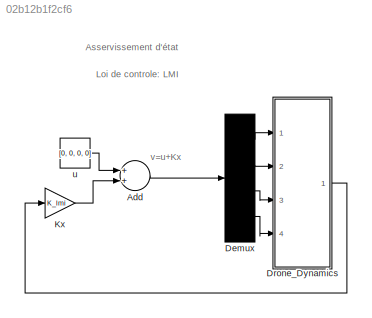
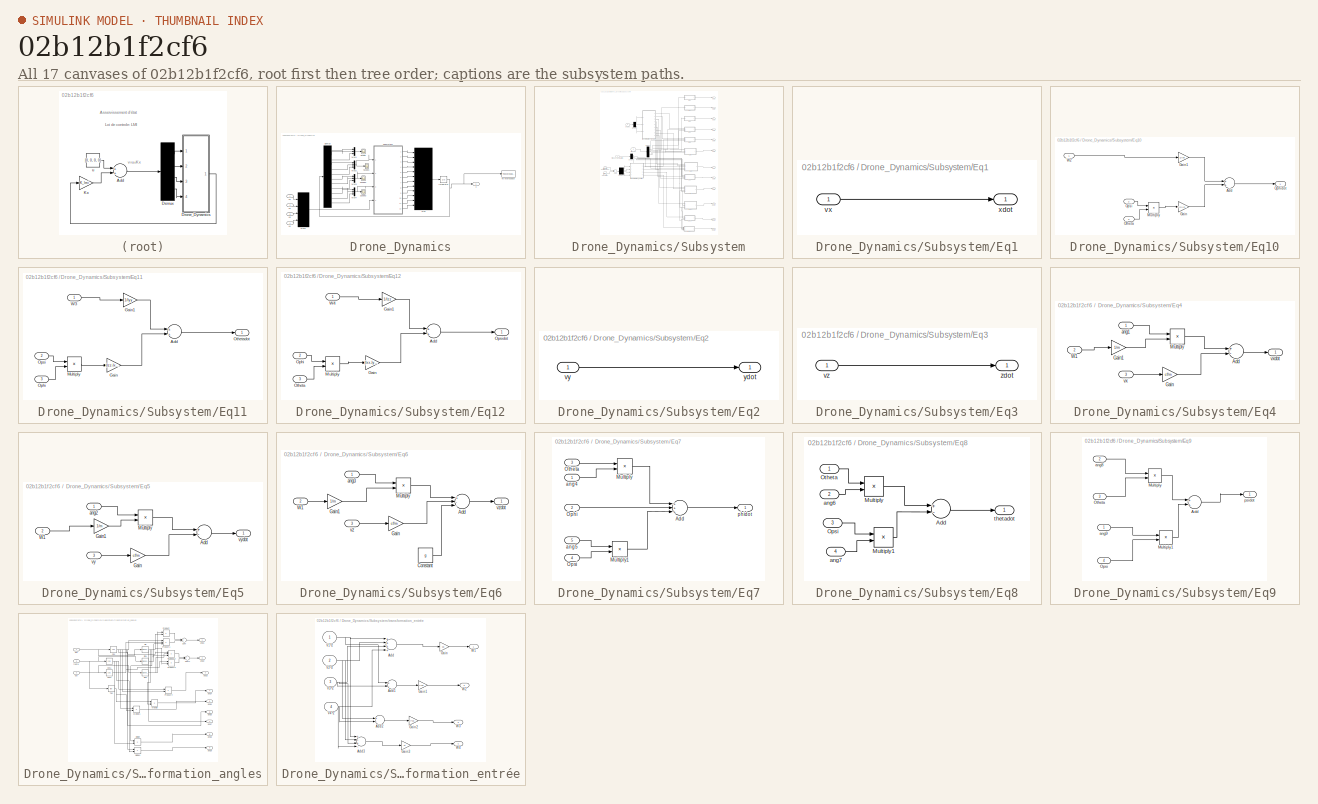
[diagram: thumbnail index - all 17 canvases of the model, root first then tree order]
MODEL slx_02b12b1f2cf6
KIND model
CONFIG AbsTol = auto
CONFIG EnableMultiTasking = off
CONFIG FixedStep = auto
CONFIG MaxStep = auto
CONFIG MinStep = auto
CONFIG RelTol = 1e-3
CONFIG SampleTimeConstraint = Unconstrained
CONFIG Solver = VariableStepAuto
CONFIG SolverName = VariableStepAuto
CONFIG StartTime = 0.0
CONFIG StopTime = 10.0
BLOCK [Sum] Add
  InputSameDT = off
  OutDataTypeStr = Inherit: Inherit via internal rule
  Ports = [2, 1]
  SaturateOnIntegerOverflow = off
BLOCK [Demux] Demux
  DisplayOption = bar
  Ports = [1, 4]
BLOCK [SubSystem] Drone_Dynamics
  Ports = [4, 1]
  RequestExecContextInheritance = off
BLOCK [Demux] Drone_Dynamics/Demux
  DisplayOption = bar
  Outputs = 12
  Ports = [1, 12]
BLOCK [Integrator] Drone_Dynamics/Integrator
  InitialCondition = [0.1,0.1,0.1,0,0,0,0,0,0,0,0,0]
  Ports = [1, 1]
BLOCK [Mux] Drone_Dynamics/Mux
  DisplayOption = bar
  Inputs = 12
  Ports = [12, 1]
BLOCK [Mux] Drone_Dynamics/Mux1
  DisplayOption = bar
  Inputs = 3
  Ports = [3, 1]
BLOCK [Mux] Drone_Dynamics/Mux2
  DisplayOption = bar
  Inputs = 3
  Ports = [3, 1]
BLOCK [Mux] Drone_Dynamics/Mux3
  DisplayOption = bar
  Inputs = 3
  Ports = [3, 1]
BLOCK [Mux] Drone_Dynamics/Mux4
  DisplayOption = bar
  Inputs = 3
  Ports = [3, 1]
BLOCK [Mux] Drone_Dynamics/Mux5
  DisplayOption = bar
  Ports = [4, 1]
BLOCK [Scope] Drone_Dynamics/Scope
  Floating = off
  NumInputPorts = 1
  Ports = [1]
  ScopeSpecificationString = Simulink.scopes.TimeScopeBlockCfg('CurrentConfiguration', extmgr.ConfigurationSet(extmgr.Configuration('Core','General UI',true),extmgr.Configuration('Core','Source UI',true),extmgr.Configuration('Sources','WiredSimulink',true,'DataLoggingVariableName','ScopeData1'),extmgr.Configuration('Visuals','Time Domain',true,'SerializedDisplays',{struct('MinYLimReal','-52.57171','MaxYLimReal','45.2202','YLa...<+1426ch>
BLOCK [Scope] Drone_Dynamics/Scope1
  Floating = off
  NumInputPorts = 1
  Ports = [1]
  ScopeSpecificationString = Simulink.scopes.TimeScopeBlockCfg('CurrentConfiguration', extmgr.ConfigurationSet(extmgr.Configuration('Core','General UI',true),extmgr.Configuration('Core','Source UI',true),extmgr.Configuration('Sources','WiredSimulink',true,'DataLoggingVariableName','ScopeData2'),extmgr.Configuration('Visuals','Time Domain',true,'SerializedDisplays',{struct('MinYLimReal','-56.33955','MaxYLimReal','41.05214','YL...<+1428ch>
BLOCK [Scope] Drone_Dynamics/Scope2
  Floating = off
  NumInputPorts = 1
  Ports = [1]
  ScopeSpecificationString = Simulink.scopes.TimeScopeBlockCfg('CurrentConfiguration', extmgr.ConfigurationSet(extmgr.Configuration('Core','General UI',true),extmgr.Configuration('Core','Source UI',true),extmgr.Configuration('Sources','WiredSimulink',true,'DataLoggingVariableName','ScopeData3'),extmgr.Configuration('Visuals','Time Domain',true,'SerializedDisplays',{struct('MinYLimReal','-1','MaxYLimReal','1','YLabelReal','','...<+1414ch>
BLOCK [Scope] Drone_Dynamics/Scope3
  Floating = off
  NumInputPorts = 1
  Ports = [1]
  ScopeSpecificationString = Simulink.scopes.TimeScopeBlockCfg('CurrentConfiguration', extmgr.ConfigurationSet(extmgr.Configuration('Core','General UI',true),extmgr.Configuration('Core','Source UI',true),extmgr.Configuration('Sources','WiredSimulink',true),extmgr.Configuration('Visuals','Time Domain',true,'SerializedDisplays',{struct('MinYLimReal','-34.64705','MaxYLimReal','33.57081','YLabelReal','','MinYLimMag','0.00000','Ma...<+1393ch>
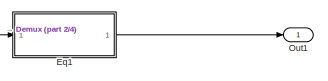
[diagram: Drone_Dynamics/Subsystem - part 1/4, top right region]
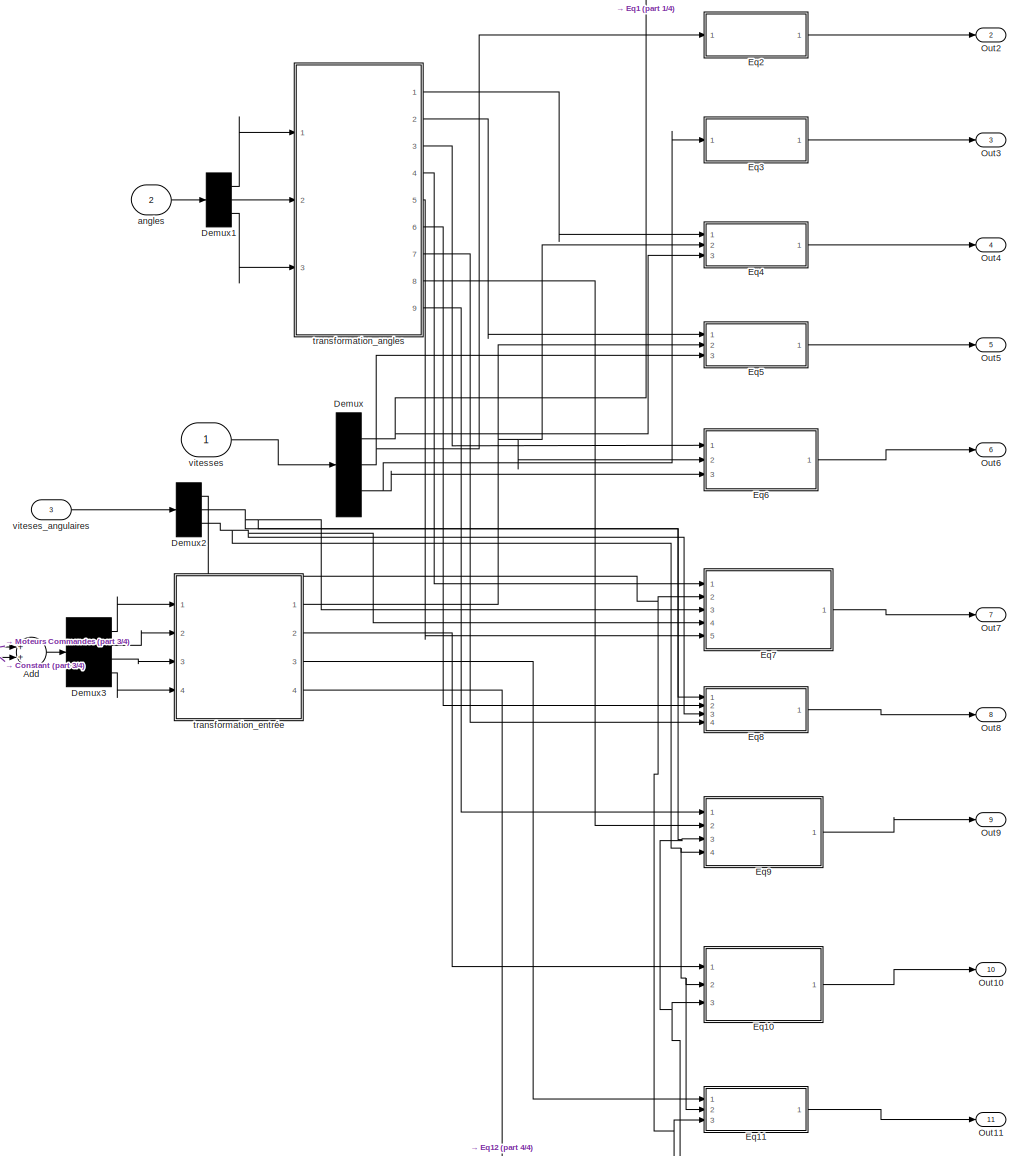
[diagram: Drone_Dynamics/Subsystem - part 2/4, most of the canvas]
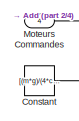
[diagram: Drone_Dynamics/Subsystem - part 3/4, middle left region]
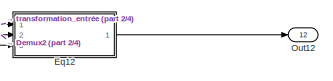
[diagram: Drone_Dynamics/Subsystem - part 4/4, bottom right region]
BLOCK [SubSystem] Drone_Dynamics/Subsystem
  Ports = [4, 12]
  RequestExecContextInheritance = off
BLOCK [Sum] Drone_Dynamics/Subsystem/Add
  InputSameDT = off
  OutDataTypeStr = Inherit: Inherit via internal rule
  Ports = [2, 1]
  SaturateOnIntegerOverflow = off
BLOCK [Constant] Drone_Dynamics/Subsystem/Constant
  Value = [(m*g)/(4*cp),(m*g)/(4*cp),(m*g)/(4*cp),(m*g)/(4*cp)]
BLOCK [Demux] Drone_Dynamics/Subsystem/Demux
  DisplayOption = bar
  Outputs = 3
  Ports = [1, 3]
BLOCK [Demux] Drone_Dynamics/Subsystem/Demux1
  DisplayOption = bar
  Outputs = 3
  Ports = [1, 3]
BLOCK [Demux] Drone_Dynamics/Subsystem/Demux2
  DisplayOption = bar
  Outputs = 3
  Ports = [1, 3]
BLOCK [Demux] Drone_Dynamics/Subsystem/Demux3
  DisplayOption = bar
  Ports = [1, 4]
BLOCK [SubSystem] Drone_Dynamics/Subsystem/Eq1
  Ports = [1, 1]
  RequestExecContextInheritance = off
BLOCK [Inport] Drone_Dynamics/Subsystem/Eq1/vx
  IconDisplay = Port number
BLOCK [Outport] Drone_Dynamics/Subsystem/Eq1/xdot
  IconDisplay = Port number
BLOCK [SubSystem] Drone_Dynamics/Subsystem/Eq10
  Ports = [3, 1]
  RequestExecContextInheritance = off
BLOCK [Sum] Drone_Dynamics/Subsystem/Eq10/Add
  InputSameDT = off
  OutDataTypeStr = Inherit: Inherit via internal rule
  Ports = [2, 1]
  SaturateOnIntegerOverflow = off
BLOCK [Gain] Drone_Dynamics/Subsystem/Eq10/Gain
  Gain = (Iyy-Izz)/Ixx
  OutDataTypeStr = Inherit: Inherit via internal rule
  ParamDataTypeStr = Inherit: Inherit via internal rule
  SaturateOnIntegerOverflow = off
BLOCK [Gain] Drone_Dynamics/Subsystem/Eq10/Gain1
  Gain = 1/Ixx
  OutDataTypeStr = Inherit: Inherit via internal rule
  ParamDataTypeStr = Inherit: Inherit via internal rule
  SaturateOnIntegerOverflow = off
BLOCK [Product] Drone_Dynamics/Subsystem/Eq10/Multiply
  InputSameDT = off
  OutDataTypeStr = Inherit: Inherit via internal rule
  Ports = [2, 1]
  RndMeth = Floor
  SaturateOnIntegerOverflow = off
BLOCK [Outport] Drone_Dynamics/Subsystem/Eq10/Ophidot
  IconDisplay = Port number
BLOCK [Inport] Drone_Dynamics/Subsystem/Eq10/Opsi
  IconDisplay = Port number
  Port = 2
BLOCK [Inport] Drone_Dynamics/Subsystem/Eq10/Otheta
  IconDisplay = Port number
  Port = 3
BLOCK [Inport] Drone_Dynamics/Subsystem/Eq10/W2
  IconDisplay = Port number
BLOCK [SubSystem] Drone_Dynamics/Subsystem/Eq11
  Ports = [3, 1]
  RequestExecContextInheritance = off
BLOCK [Sum] Drone_Dynamics/Subsystem/Eq11/Add
  InputSameDT = off
  OutDataTypeStr = Inherit: Inherit via internal rule
  Ports = [2, 1]
  SaturateOnIntegerOverflow = off
BLOCK [Gain] Drone_Dynamics/Subsystem/Eq11/Gain
  Gain = (Izz-Ixx)/Iyy
  OutDataTypeStr = Inherit: Inherit via internal rule
  ParamDataTypeStr = Inherit: Inherit via internal rule
  SaturateOnIntegerOverflow = off
BLOCK [Gain] Drone_Dynamics/Subsystem/Eq11/Gain1
  Gain = 1/Iyy
  OutDataTypeStr = Inherit: Inherit via internal rule
  ParamDataTypeStr = Inherit: Inherit via internal rule
  SaturateOnIntegerOverflow = off
BLOCK [Product] Drone_Dynamics/Subsystem/Eq11/Multiply
  InputSameDT = off
  OutDataTypeStr = Inherit: Inherit via internal rule
  Ports = [2, 1]
  RndMeth = Floor
  SaturateOnIntegerOverflow = off
BLOCK [Inport] Drone_Dynamics/Subsystem/Eq11/Ophi
  IconDisplay = Port number
  Port = 3
BLOCK [Inport] Drone_Dynamics/Subsystem/Eq11/Opsi
  IconDisplay = Port number
  Port = 2
BLOCK [Outport] Drone_Dynamics/Subsystem/Eq11/Othetadot
  IconDisplay = Port number
BLOCK [Inport] Drone_Dynamics/Subsystem/Eq11/W3
  IconDisplay = Port number
BLOCK [SubSystem] Drone_Dynamics/Subsystem/Eq12
  Ports = [3, 1]
  RequestExecContextInheritance = off
BLOCK [Sum] Drone_Dynamics/Subsystem/Eq12/Add
  InputSameDT = off
  OutDataTypeStr = Inherit: Inherit via internal rule
  Ports = [2, 1]
  SaturateOnIntegerOverflow = off
BLOCK [Gain] Drone_Dynamics/Subsystem/Eq12/Gain
  Gain = (Ixx-Iyy)/Izz
  OutDataTypeStr = Inherit: Inherit via internal rule
  ParamDataTypeStr = Inherit: Inherit via internal rule
  SaturateOnIntegerOverflow = off
BLOCK [Gain] Drone_Dynamics/Subsystem/Eq12/Gain1
  Gain = 1/Izz
  OutDataTypeStr = Inherit: Inherit via internal rule
  ParamDataTypeStr = Inherit: Inherit via internal rule
  SaturateOnIntegerOverflow = off
BLOCK [Product] Drone_Dynamics/Subsystem/Eq12/Multiply
  InputSameDT = off
  OutDataTypeStr = Inherit: Inherit via internal rule
  Ports = [2, 1]
  RndMeth = Floor
  SaturateOnIntegerOverflow = off
BLOCK [Inport] Drone_Dynamics/Subsystem/Eq12/Ophi
  IconDisplay = Port number
  Port = 2
BLOCK [Outport] Drone_Dynamics/Subsystem/Eq12/Opsidot
  IconDisplay = Port number
BLOCK [Inport] Drone_Dynamics/Subsystem/Eq12/Otheta
  IconDisplay = Port number
  Port = 3
BLOCK [Inport] Drone_Dynamics/Subsystem/Eq12/W4
  IconDisplay = Port number
BLOCK [SubSystem] Drone_Dynamics/Subsystem/Eq2
  Ports = [1, 1]
  RequestExecContextInheritance = off
BLOCK [Inport] Drone_Dynamics/Subsystem/Eq2/vy
  IconDisplay = Port number
BLOCK [Outport] Drone_Dynamics/Subsystem/Eq2/ydot
  IconDisplay = Port number
BLOCK [SubSystem] Drone_Dynamics/Subsystem/Eq3
  Ports = [1, 1]
  RequestExecContextInheritance = off
BLOCK [Inport] Drone_Dynamics/Subsystem/Eq3/vz
  IconDisplay = Port number
BLOCK [Outport] Drone_Dynamics/Subsystem/Eq3/zdot
  IconDisplay = Port number
BLOCK [SubSystem] Drone_Dynamics/Subsystem/Eq4
  Ports = [3, 1]
  RequestExecContextInheritance = off
BLOCK [Sum] Drone_Dynamics/Subsystem/Eq4/Add
  InputSameDT = off
  Inputs = +-
  OutDataTypeStr = Inherit: Inherit via internal rule
  Ports = [2, 1]
  SaturateOnIntegerOverflow = off
BLOCK [Gain] Drone_Dynamics/Subsystem/Eq4/Gain
  Gain = cf/m
  OutDataTypeStr = Inherit: Inherit via internal rule
  ParamDataTypeStr = Inherit: Inherit via internal rule
  SaturateOnIntegerOverflow = off
BLOCK [Gain] Drone_Dynamics/Subsystem/Eq4/Gain1
  Gain = 1/m
  OutDataTypeStr = Inherit: Inherit via internal rule
  ParamDataTypeStr = Inherit: Inherit via internal rule
  SaturateOnIntegerOverflow = off
BLOCK [Product] Drone_Dynamics/Subsystem/Eq4/Multiply
  InputSameDT = off
  OutDataTypeStr = Inherit: Inherit via internal rule
  Ports = [2, 1]
  RndMeth = Floor
  SaturateOnIntegerOverflow = off
BLOCK [Inport] Drone_Dynamics/Subsystem/Eq4/W1
  IconDisplay = Port number
  Port = 2
BLOCK [Inport] Drone_Dynamics/Subsystem/Eq4/ang1
  IconDisplay = Port number
BLOCK [Inport] Drone_Dynamics/Subsystem/Eq4/vx
  IconDisplay = Port number
  Port = 3
BLOCK [Outport] Drone_Dynamics/Subsystem/Eq4/vxdot
  IconDisplay = Port number
BLOCK [SubSystem] Drone_Dynamics/Subsystem/Eq5
  Ports = [3, 1]
  RequestExecContextInheritance = off
BLOCK [Sum] Drone_Dynamics/Subsystem/Eq5/Add
  InputSameDT = off
  Inputs = +-
  OutDataTypeStr = Inherit: Inherit via internal rule
  Ports = [2, 1]
  SaturateOnIntegerOverflow = off
BLOCK [Gain] Drone_Dynamics/Subsystem/Eq5/Gain
  Gain = cf/m
  OutDataTypeStr = Inherit: Inherit via internal rule
  ParamDataTypeStr = Inherit: Inherit via internal rule
  SaturateOnIntegerOverflow = off
BLOCK [Gain] Drone_Dynamics/Subsystem/Eq5/Gain1
  Gain = 1/m
  OutDataTypeStr = Inherit: Inherit via internal rule
  ParamDataTypeStr = Inherit: Inherit via internal rule
  SaturateOnIntegerOverflow = off
BLOCK [Product] Drone_Dynamics/Subsystem/Eq5/Multiply
  InputSameDT = off
  OutDataTypeStr = Inherit: Inherit via internal rule
  Ports = [2, 1]
  RndMeth = Floor
  SaturateOnIntegerOverflow = off
BLOCK [Inport] Drone_Dynamics/Subsystem/Eq5/W1
  IconDisplay = Port number
  Port = 2
BLOCK [Inport] Drone_Dynamics/Subsystem/Eq5/ang2
  IconDisplay = Port number
BLOCK [Inport] Drone_Dynamics/Subsystem/Eq5/vy
  IconDisplay = Port number
  Port = 3
BLOCK [Outport] Drone_Dynamics/Subsystem/Eq5/vydot 
  IconDisplay = Port number
BLOCK [SubSystem] Drone_Dynamics/Subsystem/Eq6
  Ports = [3, 1]
  RequestExecContextInheritance = off
BLOCK [Sum] Drone_Dynamics/Subsystem/Eq6/Add
  InputSameDT = off
  Inputs = +--
  OutDataTypeStr = Inherit: Inherit via internal rule
  Ports = [3, 1]
  SaturateOnIntegerOverflow = off
BLOCK [Constant] Drone_Dynamics/Subsystem/Eq6/Constant
  Value = g
BLOCK [Gain] Drone_Dynamics/Subsystem/Eq6/Gain
  Gain = cf/m
  OutDataTypeStr = Inherit: Inherit via internal rule
  ParamDataTypeStr = Inherit: Inherit via internal rule
  SaturateOnIntegerOverflow = off
BLOCK [Gain] Drone_Dynamics/Subsystem/Eq6/Gain1
  Gain = 1/m
  OutDataTypeStr = Inherit: Inherit via internal rule
  ParamDataTypeStr = Inherit: Inherit via internal rule
  SaturateOnIntegerOverflow = off
BLOCK [Product] Drone_Dynamics/Subsystem/Eq6/Multiply
  InputSameDT = off
  OutDataTypeStr = Inherit: Inherit via internal rule
  Ports = [2, 1]
  RndMeth = Floor
  SaturateOnIntegerOverflow = off
BLOCK [Inport] Drone_Dynamics/Subsystem/Eq6/W1
  IconDisplay = Port number
  Port = 2
BLOCK [Inport] Drone_Dynamics/Subsystem/Eq6/ang3
  IconDisplay = Port number
BLOCK [Inport] Drone_Dynamics/Subsystem/Eq6/vz
  IconDisplay = Port number
  Port = 3
BLOCK [Outport] Drone_Dynamics/Subsystem/Eq6/vzdot 
  IconDisplay = Port number
BLOCK [SubSystem] Drone_Dynamics/Subsystem/Eq7
  Ports = [5, 1]
  RequestExecContextInheritance = off
BLOCK [Sum] Drone_Dynamics/Subsystem/Eq7/Add
  InputSameDT = off
  Inputs = +++
  OutDataTypeStr = Inherit: Inherit via internal rule
  Ports = [3, 1]
  SaturateOnIntegerOverflow = off
BLOCK [Product] Drone_Dynamics/Subsystem/Eq7/Multiply
  InputSameDT = off
  OutDataTypeStr = Inherit: Inherit via internal rule
  Ports = [2, 1]
  RndMeth = Floor
  SaturateOnIntegerOverflow = off
BLOCK [Product] Drone_Dynamics/Subsystem/Eq7/Multiply1
  InputSameDT = off
  OutDataTypeStr = Inherit: Inherit via internal rule
  Ports = [2, 1]
  RndMeth = Floor
  SaturateOnIntegerOverflow = off
BLOCK [Inport] Drone_Dynamics/Subsystem/Eq7/Ophi
  IconDisplay = Port number
  Port = 2
BLOCK [Inport] Drone_Dynamics/Subsystem/Eq7/Opsi
  IconDisplay = Port number
  Port = 4
BLOCK [Inport] Drone_Dynamics/Subsystem/Eq7/Otheta
  IconDisplay = Port number
  Port = 3
BLOCK [Inport] Drone_Dynamics/Subsystem/Eq7/ang4 
  IconDisplay = Port number
BLOCK [Inport] Drone_Dynamics/Subsystem/Eq7/ang5
  IconDisplay = Port number
  Port = 5
BLOCK [Outport] Drone_Dynamics/Subsystem/Eq7/phidot 
  IconDisplay = Port number
BLOCK [SubSystem] Drone_Dynamics/Subsystem/Eq8
  Ports = [4, 1]
  RequestExecContextInheritance = off
BLOCK [Sum] Drone_Dynamics/Subsystem/Eq8/Add
  InputSameDT = off
  Inputs = +-
  OutDataTypeStr = Inherit: Inherit via internal rule
  Ports = [2, 1]
  SaturateOnIntegerOverflow = off
BLOCK [Product] Drone_Dynamics/Subsystem/Eq8/Multiply
  InputSameDT = off
  OutDataTypeStr = Inherit: Inherit via internal rule
  Ports = [2, 1]
  RndMeth = Floor
  SaturateOnIntegerOverflow = off
BLOCK [Product] Drone_Dynamics/Subsystem/Eq8/Multiply1
  InputSameDT = off
  OutDataTypeStr = Inherit: Inherit via internal rule
  Ports = [2, 1]
  RndMeth = Floor
  SaturateOnIntegerOverflow = off
BLOCK [Inport] Drone_Dynamics/Subsystem/Eq8/Opsi
  IconDisplay = Port number
  Port = 3
BLOCK [Inport] Drone_Dynamics/Subsystem/Eq8/Otheta
  IconDisplay = Port number
BLOCK [Inport] Drone_Dynamics/Subsystem/Eq8/ang6
  IconDisplay = Port number
  Port = 2
BLOCK [Inport] Drone_Dynamics/Subsystem/Eq8/ang7
  IconDisplay = Port number
  Port = 4
BLOCK [Outport] Drone_Dynamics/Subsystem/Eq8/thetadot
  IconDisplay = Port number
BLOCK [SubSystem] Drone_Dynamics/Subsystem/Eq9
  Ports = [4, 1]
  RequestExecContextInheritance = off
BLOCK [Sum] Drone_Dynamics/Subsystem/Eq9/Add
  InputSameDT = off
  OutDataTypeStr = Inherit: Inherit via internal rule
  Ports = [2, 1]
  SaturateOnIntegerOverflow = off
BLOCK [Product] Drone_Dynamics/Subsystem/Eq9/Multiply
  InputSameDT = off
  OutDataTypeStr = Inherit: Inherit via internal rule
  Ports = [2, 1]
  RndMeth = Floor
  SaturateOnIntegerOverflow = off
BLOCK [Product] Drone_Dynamics/Subsystem/Eq9/Multiply1
  InputSameDT = off
  OutDataTypeStr = Inherit: Inherit via internal rule
  Ports = [2, 1]
  RndMeth = Floor
  SaturateOnIntegerOverflow = off
BLOCK [Inport] Drone_Dynamics/Subsystem/Eq9/Opsi
  IconDisplay = Port number
  Port = 4
BLOCK [Inport] Drone_Dynamics/Subsystem/Eq9/Otheta
  IconDisplay = Port number
  Port = 3
BLOCK [Inport] Drone_Dynamics/Subsystem/Eq9/ang8
  IconDisplay = Port number
  Port = 2
BLOCK [Inport] Drone_Dynamics/Subsystem/Eq9/ang9 
  IconDisplay = Port number
BLOCK [Outport] Drone_Dynamics/Subsystem/Eq9/psidot 
  IconDisplay = Port number
BLOCK [Inport] Drone_Dynamics/Subsystem/Moteurs Commandes
  IconDisplay = Port number
  Port = 4
BLOCK [Outport] Drone_Dynamics/Subsystem/Out1
  IconDisplay = Port number
BLOCK [Outport] Drone_Dynamics/Subsystem/Out10
  IconDisplay = Port number
  Port = 10
BLOCK [Outport] Drone_Dynamics/Subsystem/Out11
  IconDisplay = Port number
  Port = 11
BLOCK [Outport] Drone_Dynamics/Subsystem/Out12
  IconDisplay = Port number
  Port = 12
BLOCK [Outport] Drone_Dynamics/Subsystem/Out2
  IconDisplay = Port number
  Port = 2
BLOCK [Outport] Drone_Dynamics/Subsystem/Out3
  IconDisplay = Port number
  Port = 3
BLOCK [Outport] Drone_Dynamics/Subsystem/Out4
  IconDisplay = Port number
  Port = 4
BLOCK [Outport] Drone_Dynamics/Subsystem/Out5
  IconDisplay = Port number
  Port = 5
BLOCK [Outport] Drone_Dynamics/Subsystem/Out6
  IconDisplay = Port number
  Port = 6
BLOCK [Outport] Drone_Dynamics/Subsystem/Out7
  IconDisplay = Port number
  Port = 7
BLOCK [Outport] Drone_Dynamics/Subsystem/Out8
  IconDisplay = Port number
  Port = 8
BLOCK [Outport] Drone_Dynamics/Subsystem/Out9
  IconDisplay = Port number
  Port = 9
BLOCK [Inport] Drone_Dynamics/Subsystem/angles
  IconDisplay = Port number
  Port = 2
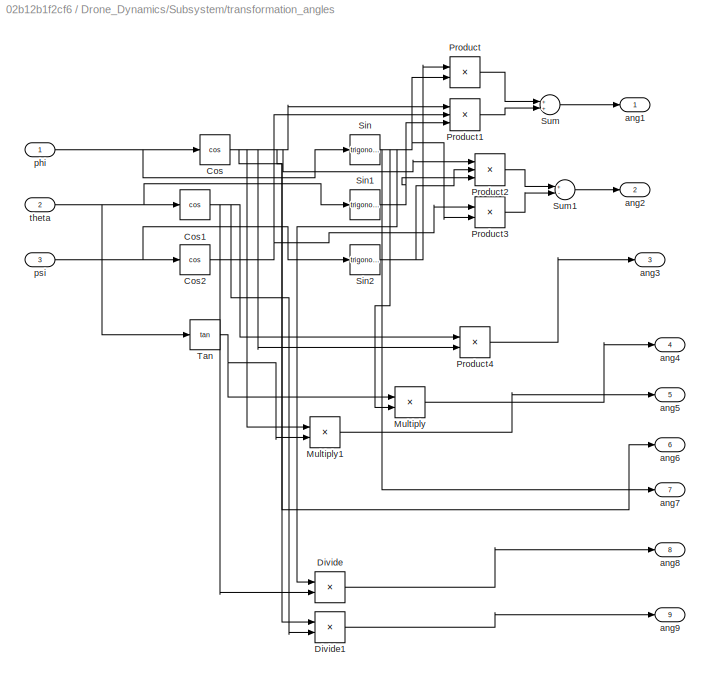
BLOCK [SubSystem] Drone_Dynamics/Subsystem/transformation_angles
  Ports = [3, 9]
  RequestExecContextInheritance = off
BLOCK [Trigonometry] Drone_Dynamics/Subsystem/transformation_angles/Cos
  Operator = cos
  Ports = [1, 1]
BLOCK [Trigonometry] Drone_Dynamics/Subsystem/transformation_angles/Cos1
  Operator = cos
  Ports = [1, 1]
BLOCK [Trigonometry] Drone_Dynamics/Subsystem/transformation_angles/Cos2
  Operator = cos
  Ports = [1, 1]
BLOCK [Product] Drone_Dynamics/Subsystem/transformation_angles/Divide
  InputSameDT = off
  Inputs = */
  OutDataTypeStr = Inherit: Inherit via internal rule
  Ports = [2, 1]
  RndMeth = Floor
  SaturateOnIntegerOverflow = off
BLOCK [Product] Drone_Dynamics/Subsystem/transformation_angles/Divide1
  InputSameDT = off
  Inputs = */
  OutDataTypeStr = Inherit: Inherit via internal rule
  Ports = [2, 1]
  RndMeth = Floor
  SaturateOnIntegerOverflow = off
BLOCK [Product] Drone_Dynamics/Subsystem/transformation_angles/Multiply
  InputSameDT = off
  OutDataTypeStr = Inherit: Inherit via internal rule
  Ports = [2, 1]
  RndMeth = Floor
  SaturateOnIntegerOverflow = off
BLOCK [Product] Drone_Dynamics/Subsystem/transformation_angles/Multiply1
  InputSameDT = off
  OutDataTypeStr = Inherit: Inherit via internal rule
  Ports = [2, 1]
  RndMeth = Floor
  SaturateOnIntegerOverflow = off
BLOCK [Product] Drone_Dynamics/Subsystem/transformation_angles/Product
  InputSameDT = off
  OutDataTypeStr = Inherit: Inherit via internal rule
  Ports = [2, 1]
  RndMeth = Floor
  SaturateOnIntegerOverflow = off
BLOCK [Product] Drone_Dynamics/Subsystem/transformation_angles/Product1
  InputSameDT = off
  Inputs = 3
  OutDataTypeStr = Inherit: Inherit via internal rule
  Ports = [3, 1]
  RndMeth = Floor
  SaturateOnIntegerOverflow = off
BLOCK [Product] Drone_Dynamics/Subsystem/transformation_angles/Product2
  InputSameDT = off
  Inputs = 3
  OutDataTypeStr = Inherit: Inherit via internal rule
  Ports = [3, 1]
  RndMeth = Floor
  SaturateOnIntegerOverflow = off
BLOCK [Product] Drone_Dynamics/Subsystem/transformation_angles/Product3
  InputSameDT = off
  OutDataTypeStr = Inherit: Inherit via internal rule
  Ports = [2, 1]
  RndMeth = Floor
  SaturateOnIntegerOverflow = off
BLOCK [Product] Drone_Dynamics/Subsystem/transformation_angles/Product4
  InputSameDT = off
  OutDataTypeStr = Inherit: Inherit via internal rule
  Ports = [2, 1]
  RndMeth = Floor
  SaturateOnIntegerOverflow = off
BLOCK [Trigonometry] Drone_Dynamics/Subsystem/transformation_angles/Sin
  Ports = [1, 1]
BLOCK [Trigonometry] Drone_Dynamics/Subsystem/transformation_angles/Sin1
  Ports = [1, 1]
BLOCK [Trigonometry] Drone_Dynamics/Subsystem/transformation_angles/Sin2
  Ports = [1, 1]
BLOCK [Sum] Drone_Dynamics/Subsystem/transformation_angles/Sum
  InputSameDT = off
  OutDataTypeStr = Inherit: Inherit via internal rule
  Ports = [2, 1]
  SaturateOnIntegerOverflow = off
BLOCK [Sum] Drone_Dynamics/Subsystem/transformation_angles/Sum1
  InputSameDT = off
  Inputs = +-
  OutDataTypeStr = Inherit: Inherit via internal rule
  Ports = [2, 1]
  SaturateOnIntegerOverflow = off
BLOCK [Trigonometry] Drone_Dynamics/Subsystem/transformation_angles/Tan
  Operator = tan
  Ports = [1, 1]
BLOCK [Outport] Drone_Dynamics/Subsystem/transformation_angles/ang1
  IconDisplay = Port number
BLOCK [Outport] Drone_Dynamics/Subsystem/transformation_angles/ang2
  IconDisplay = Port number
  Port = 2
BLOCK [Outport] Drone_Dynamics/Subsystem/transformation_angles/ang3
  IconDisplay = Port number
  Port = 3
BLOCK [Outport] Drone_Dynamics/Subsystem/transformation_angles/ang4
  IconDisplay = Port number
  Port = 4
BLOCK [Outport] Drone_Dynamics/Subsystem/transformation_angles/ang5
  IconDisplay = Port number
  Port = 5
BLOCK [Outport] Drone_Dynamics/Subsystem/transformation_angles/ang6
  IconDisplay = Port number
  Port = 6
BLOCK [Outport] Drone_Dynamics/Subsystem/transformation_angles/ang7
  IconDisplay = Port number
  Port = 7
BLOCK [Outport] Drone_Dynamics/Subsystem/transformation_angles/ang8
  IconDisplay = Port number
  Port = 8
BLOCK [Outport] Drone_Dynamics/Subsystem/transformation_angles/ang9
  IconDisplay = Port number
  Port = 9
BLOCK [Inport] Drone_Dynamics/Subsystem/transformation_angles/phi
  IconDisplay = Port number
BLOCK [Inport] Drone_Dynamics/Subsystem/transformation_angles/psi 
  IconDisplay = Port number
  Port = 3
BLOCK [Inport] Drone_Dynamics/Subsystem/transformation_angles/theta 
  IconDisplay = Port number
  Port = 2
BLOCK [SubSystem] Drone_Dynamics/Subsystem/transformation_entrée
  Ports = [4, 4]
  RequestExecContextInheritance = off
BLOCK [Sum] Drone_Dynamics/Subsystem/transformation_entrée/Add
  InputSameDT = off
  Inputs = ++++
  OutDataTypeStr = Inherit: Inherit via internal rule
  Ports = [4, 1]
  SaturateOnIntegerOverflow = off
BLOCK [Sum] Drone_Dynamics/Subsystem/transformation_entrée/Add1
  InputSameDT = off
  Inputs = +-
  OutDataTypeStr = Inherit: Inherit via internal rule
  Ports = [2, 1]
  SaturateOnIntegerOverflow = off
BLOCK [Sum] Drone_Dynamics/Subsystem/transformation_entrée/Add2
  InputSameDT = off
  Inputs = +-
  OutDataTypeStr = Inherit: Inherit via internal rule
  Ports = [2, 1]
  SaturateOnIntegerOverflow = off
BLOCK [Sum] Drone_Dynamics/Subsystem/transformation_entrée/Add3
  InputSameDT = off
  Inputs = +-+-
  OutDataTypeStr = Inherit: Inherit via internal rule
  Ports = [4, 1]
  SaturateOnIntegerOverflow = off
BLOCK [Gain] Drone_Dynamics/Subsystem/transformation_entrée/Gain
  Gain = cp
  OutDataTypeStr = Inherit: Inherit via internal rule
  ParamDataTypeStr = Inherit: Inherit via internal rule
  SaturateOnIntegerOverflow = off
BLOCK [Gain] Drone_Dynamics/Subsystem/transformation_entrée/Gain1
  Gain = r*cp
  OutDataTypeStr = Inherit: Inherit via internal rule
  ParamDataTypeStr = Inherit: Inherit via internal rule
  SaturateOnIntegerOverflow = off
BLOCK [Gain] Drone_Dynamics/Subsystem/transformation_entrée/Gain2
  Gain = r*cp
  OutDataTypeStr = Inherit: Inherit via internal rule
  ParamDataTypeStr = Inherit: Inherit via internal rule
  SaturateOnIntegerOverflow = off
BLOCK [Gain] Drone_Dynamics/Subsystem/transformation_entrée/Gain3
  Gain = ct
  OutDataTypeStr = Inherit: Inherit via internal rule
  ParamDataTypeStr = Inherit: Inherit via internal rule
  SaturateOnIntegerOverflow = off
BLOCK [Inport] Drone_Dynamics/Subsystem/transformation_entrée/V1^2
  IconDisplay = Port number
BLOCK [Inport] Drone_Dynamics/Subsystem/transformation_entrée/V2^2
  IconDisplay = Port number
  Port = 2
BLOCK [Inport] Drone_Dynamics/Subsystem/transformation_entrée/V3^2
  IconDisplay = Port number
  Port = 3
BLOCK [Inport] Drone_Dynamics/Subsystem/transformation_entrée/V4^2
  IconDisplay = Port number
  Port = 4
BLOCK [Outport] Drone_Dynamics/Subsystem/transformation_entrée/W1
  IconDisplay = Port number
BLOCK [Outport] Drone_Dynamics/Subsystem/transformation_entrée/W2
  IconDisplay = Port number
  Port = 2
BLOCK [Outport] Drone_Dynamics/Subsystem/transformation_entrée/W3 
  IconDisplay = Port number
  Port = 3
BLOCK [Outport] Drone_Dynamics/Subsystem/transformation_entrée/W4
  IconDisplay = Port number
  Port = 4
BLOCK [Inport] Drone_Dynamics/Subsystem/viteses_angulaires
  IconDisplay = Port number
  Port = 3
BLOCK [Inport] Drone_Dynamics/Subsystem/vitesses
  IconDisplay = Port number
BLOCK [ToWorkspace] Drone_Dynamics/To Workspace
  FixptAsFi = on
  MaxDataPoints = inf
  Ports = [1]
  SampleTime = -1
  Save2DSignal = 3-D array (concatenate along third dimension)
  SaveFormat = Structure With Time
  VariableName = simout
BLOCK [Inport] Drone_Dynamics/U1
  IconDisplay = Port number
BLOCK [Inport] Drone_Dynamics/U2
  IconDisplay = Port number
  Port = 2
BLOCK [Inport] Drone_Dynamics/U3
  IconDisplay = Port number
  Port = 3
BLOCK [Inport] Drone_Dynamics/U4
  IconDisplay = Port number
  Port = 4
BLOCK [Outport] Drone_Dynamics/x 
  IconDisplay = Port number
BLOCK [Gain] Kx
  Gain = K_lmi
  Multiplication = Matrix(K*u)
  OutDataTypeStr = Inherit: Inherit via internal rule
  ParamDataTypeStr = Inherit: Inherit via internal rule
  SaturateOnIntegerOverflow = off
BLOCK [Constant] u
  Value = [0, 0, 0, 0]
ANNOTATION (root): Asservissement d'état
ANNOTATION (root): Loi de controle: LMI
ANNOTATION (root): v=u+Kx
LINE Add:1 -> Demux:1
LINE Demux:1 -> Drone_Dynamics:1
LINE Demux:2 -> Drone_Dynamics:2
LINE Demux:3 -> Drone_Dynamics:3
LINE Demux:4 -> Drone_Dynamics:4
LINE Drone_Dynamics/Demux:1 -> Drone_Dynamics/Mux1:1
LINE Drone_Dynamics/Demux:10 -> Drone_Dynamics/Mux4:1
LINE Drone_Dynamics/Demux:11 -> Drone_Dynamics/Mux4:2
LINE Drone_Dynamics/Demux:12 -> Drone_Dynamics/Mux4:3
LINE Drone_Dynamics/Demux:2 -> Drone_Dynamics/Mux1:2
LINE Drone_Dynamics/Demux:3 -> Drone_Dynamics/Mux1:3
LINE Drone_Dynamics/Demux:4 -> Drone_Dynamics/Mux2:1
LINE Drone_Dynamics/Demux:5 -> Drone_Dynamics/Mux2:2
LINE Drone_Dynamics/Demux:6 -> Drone_Dynamics/Mux2:3
LINE Drone_Dynamics/Demux:7 -> Drone_Dynamics/Mux3:1
LINE Drone_Dynamics/Demux:8 -> Drone_Dynamics/Mux3:2
LINE Drone_Dynamics/Demux:9 -> Drone_Dynamics/Mux3:3
NET Drone_Dynamics/Integrator:1 -> Drone_Dynamics/Demux:1, Drone_Dynamics/To Workspace:1, Drone_Dynamics/x :1
LINE Drone_Dynamics/Mux1:1 -> Drone_Dynamics/Scope:1
NET Drone_Dynamics/Mux2:1 -> Drone_Dynamics/Scope1:1, Drone_Dynamics/Subsystem:1
NET Drone_Dynamics/Mux3:1 -> Drone_Dynamics/Scope2:1, Drone_Dynamics/Subsystem:2
NET Drone_Dynamics/Mux4:1 -> Drone_Dynamics/Scope3:1, Drone_Dynamics/Subsystem:3
LINE Drone_Dynamics/Mux5:1 -> Drone_Dynamics/Subsystem:4
LINE Drone_Dynamics/Mux:1 -> Drone_Dynamics/Integrator:1
LINE Drone_Dynamics/Subsystem/Add:1 -> Drone_Dynamics/Subsystem/Demux3:1
LINE Drone_Dynamics/Subsystem/Constant:1 -> Drone_Dynamics/Subsystem/Add:2
LINE Drone_Dynamics/Subsystem/Demux1:1 -> Drone_Dynamics/Subsystem/transformation_angles:1
LINE Drone_Dynamics/Subsystem/Demux1:2 -> Drone_Dynamics/Subsystem/transformation_angles:2
LINE Drone_Dynamics/Subsystem/Demux1:3 -> Drone_Dynamics/Subsystem/transformation_angles:3
NET Drone_Dynamics/Subsystem/Demux2:1 -> Drone_Dynamics/Subsystem/Eq11:3, Drone_Dynamics/Subsystem/Eq12:2, Drone_Dynamics/Subsystem/Eq7:2
NET Drone_Dynamics/Subsystem/Demux2:2 -> Drone_Dynamics/Subsystem/Eq10:3, Drone_Dynamics/Subsystem/Eq12:3, Drone_Dynamics/Subsystem/Eq7:3, Drone_Dynamics/Subsystem/Eq8:1, Drone_Dynamics/Subsystem/Eq9:3
NET Drone_Dynamics/Subsystem/Demux2:3 -> Drone_Dynamics/Subsystem/Eq10:2, Drone_Dynamics/Subsystem/Eq11:2, Drone_Dynamics/Subsystem/Eq7:4, Drone_Dynamics/Subsystem/Eq8:3, Drone_Dynamics/Subsystem/Eq9:4
LINE Drone_Dynamics/Subsystem/Demux3:1 -> Drone_Dynamics/Subsystem/transformation_entrée:1
LINE Drone_Dynamics/Subsystem/Demux3:2 -> Drone_Dynamics/Subsystem/transformation_entrée:2
LINE Drone_Dynamics/Subsystem/Demux3:3 -> Drone_Dynamics/Subsystem/transformation_entrée:3
LINE Drone_Dynamics/Subsystem/Demux3:4 -> Drone_Dynamics/Subsystem/transformation_entrée:4
NET Drone_Dynamics/Subsystem/Demux:1 -> Drone_Dynamics/Subsystem/Eq1:1, Drone_Dynamics/Subsystem/Eq4:3
NET Drone_Dynamics/Subsystem/Demux:2 -> Drone_Dynamics/Subsystem/Eq2:1, Drone_Dynamics/Subsystem/Eq5:3
NET Drone_Dynamics/Subsystem/Demux:3 -> Drone_Dynamics/Subsystem/Eq3:1, Drone_Dynamics/Subsystem/Eq6:3
LINE Drone_Dynamics/Subsystem/Eq1/vx:1 -> Drone_Dynamics/Subsystem/Eq1/xdot:1
LINE Drone_Dynamics/Subsystem/Eq10/Add:1 -> Drone_Dynamics/Subsystem/Eq10/Ophidot:1
LINE Drone_Dynamics/Subsystem/Eq10/Gain1:1 -> Drone_Dynamics/Subsystem/Eq10/Add:1
LINE Drone_Dynamics/Subsystem/Eq10/Gain:1 -> Drone_Dynamics/Subsystem/Eq10/Add:2
LINE Drone_Dynamics/Subsystem/Eq10/Multiply:1 -> Drone_Dynamics/Subsystem/Eq10/Gain:1
LINE Drone_Dynamics/Subsystem/Eq10/Opsi:1 -> Drone_Dynamics/Subsystem/Eq10/Multiply:1
LINE Drone_Dynamics/Subsystem/Eq10/Otheta:1 -> Drone_Dynamics/Subsystem/Eq10/Multiply:2
LINE Drone_Dynamics/Subsystem/Eq10/W2:1 -> Drone_Dynamics/Subsystem/Eq10/Gain1:1
LINE Drone_Dynamics/Subsystem/Eq10:1 -> Drone_Dynamics/Subsystem/Out10:1
LINE Drone_Dynamics/Subsystem/Eq11/Add:1 -> Drone_Dynamics/Subsystem/Eq11/Othetadot:1
LINE Drone_Dynamics/Subsystem/Eq11/Gain1:1 -> Drone_Dynamics/Subsystem/Eq11/Add:1
LINE Drone_Dynamics/Subsystem/Eq11/Gain:1 -> Drone_Dynamics/Subsystem/Eq11/Add:2
LINE Drone_Dynamics/Subsystem/Eq11/Multiply:1 -> Drone_Dynamics/Subsystem/Eq11/Gain:1
LINE Drone_Dynamics/Subsystem/Eq11/Ophi:1 -> Drone_Dynamics/Subsystem/Eq11/Multiply:2
LINE Drone_Dynamics/Subsystem/Eq11/Opsi:1 -> Drone_Dynamics/Subsystem/Eq11/Multiply:1
LINE Drone_Dynamics/Subsystem/Eq11/W3:1 -> Drone_Dynamics/Subsystem/Eq11/Gain1:1
LINE Drone_Dynamics/Subsystem/Eq11:1 -> Drone_Dynamics/Subsystem/Out11:1
LINE Drone_Dynamics/Subsystem/Eq12/Add:1 -> Drone_Dynamics/Subsystem/Eq12/Opsidot:1
LINE Drone_Dynamics/Subsystem/Eq12/Gain1:1 -> Drone_Dynamics/Subsystem/Eq12/Add:1
LINE Drone_Dynamics/Subsystem/Eq12/Gain:1 -> Drone_Dynamics/Subsystem/Eq12/Add:2
LINE Drone_Dynamics/Subsystem/Eq12/Multiply:1 -> Drone_Dynamics/Subsystem/Eq12/Gain:1
LINE Drone_Dynamics/Subsystem/Eq12/Ophi:1 -> Drone_Dynamics/Subsystem/Eq12/Multiply:1
LINE Drone_Dynamics/Subsystem/Eq12/Otheta:1 -> Drone_Dynamics/Subsystem/Eq12/Multiply:2
LINE Drone_Dynamics/Subsystem/Eq12/W4:1 -> Drone_Dynamics/Subsystem/Eq12/Gain1:1
LINE Drone_Dynamics/Subsystem/Eq12:1 -> Drone_Dynamics/Subsystem/Out12:1
LINE Drone_Dynamics/Subsystem/Eq1:1 -> Drone_Dynamics/Subsystem/Out1:1
LINE Drone_Dynamics/Subsystem/Eq2/vy:1 -> Drone_Dynamics/Subsystem/Eq2/ydot:1
LINE Drone_Dynamics/Subsystem/Eq2:1 -> Drone_Dynamics/Subsystem/Out2:1
LINE Drone_Dynamics/Subsystem/Eq3/vz:1 -> Drone_Dynamics/Subsystem/Eq3/zdot:1
LINE Drone_Dynamics/Subsystem/Eq3:1 -> Drone_Dynamics/Subsystem/Out3:1
LINE Drone_Dynamics/Subsystem/Eq4/Add:1 -> Drone_Dynamics/Subsystem/Eq4/vxdot:1
LINE Drone_Dynamics/Subsystem/Eq4/Gain1:1 -> Drone_Dynamics/Subsystem/Eq4/Multiply:2
LINE Drone_Dynamics/Subsystem/Eq4/Gain:1 -> Drone_Dynamics/Subsystem/Eq4/Add:2
LINE Drone_Dynamics/Subsystem/Eq4/Multiply:1 -> Drone_Dynamics/Subsystem/Eq4/Add:1
LINE Drone_Dynamics/Subsystem/Eq4/W1:1 -> Drone_Dynamics/Subsystem/Eq4/Gain1:1
LINE Drone_Dynamics/Subsystem/Eq4/ang1:1 -> Drone_Dynamics/Subsystem/Eq4/Multiply:1
LINE Drone_Dynamics/Subsystem/Eq4/vx:1 -> Drone_Dynamics/Subsystem/Eq4/Gain:1
LINE Drone_Dynamics/Subsystem/Eq4:1 -> Drone_Dynamics/Subsystem/Out4:1
LINE Drone_Dynamics/Subsystem/Eq5/Add:1 -> Drone_Dynamics/Subsystem/Eq5/vydot :1
LINE Drone_Dynamics/Subsystem/Eq5/Gain1:1 -> Drone_Dynamics/Subsystem/Eq5/Multiply:2
LINE Drone_Dynamics/Subsystem/Eq5/Gain:1 -> Drone_Dynamics/Subsystem/Eq5/Add:2
LINE Drone_Dynamics/Subsystem/Eq5/Multiply:1 -> Drone_Dynamics/Subsystem/Eq5/Add:1
LINE Drone_Dynamics/Subsystem/Eq5/W1:1 -> Drone_Dynamics/Subsystem/Eq5/Gain1:1
LINE Drone_Dynamics/Subsystem/Eq5/ang2:1 -> Drone_Dynamics/Subsystem/Eq5/Multiply:1
LINE Drone_Dynamics/Subsystem/Eq5/vy:1 -> Drone_Dynamics/Subsystem/Eq5/Gain:1
LINE Drone_Dynamics/Subsystem/Eq5:1 -> Drone_Dynamics/Subsystem/Out5:1
LINE Drone_Dynamics/Subsystem/Eq6/Add:1 -> Drone_Dynamics/Subsystem/Eq6/vzdot :1
LINE Drone_Dynamics/Subsystem/Eq6/Constant:1 -> Drone_Dynamics/Subsystem/Eq6/Add:3
LINE Drone_Dynamics/Subsystem/Eq6/Gain1:1 -> Drone_Dynamics/Subsystem/Eq6/Multiply:2
LINE Drone_Dynamics/Subsystem/Eq6/Gain:1 -> Drone_Dynamics/Subsystem/Eq6/Add:2
LINE Drone_Dynamics/Subsystem/Eq6/Multiply:1 -> Drone_Dynamics/Subsystem/Eq6/Add:1
LINE Drone_Dynamics/Subsystem/Eq6/W1:1 -> Drone_Dynamics/Subsystem/Eq6/Gain1:1
LINE Drone_Dynamics/Subsystem/Eq6/ang3:1 -> Drone_Dynamics/Subsystem/Eq6/Multiply:1
LINE Drone_Dynamics/Subsystem/Eq6/vz:1 -> Drone_Dynamics/Subsystem/Eq6/Gain:1
LINE Drone_Dynamics/Subsystem/Eq6:1 -> Drone_Dynamics/Subsystem/Out6:1
LINE Drone_Dynamics/Subsystem/Eq7/Add:1 -> Drone_Dynamics/Subsystem/Eq7/phidot :1
LINE Drone_Dynamics/Subsystem/Eq7/Multiply1:1 -> Drone_Dynamics/Subsystem/Eq7/Add:3
LINE Drone_Dynamics/Subsystem/Eq7/Multiply:1 -> Drone_Dynamics/Subsystem/Eq7/Add:1
LINE Drone_Dynamics/Subsystem/Eq7/Ophi:1 -> Drone_Dynamics/Subsystem/Eq7/Add:2
LINE Drone_Dynamics/Subsystem/Eq7/Opsi:1 -> Drone_Dynamics/Subsystem/Eq7/Multiply1:2
LINE Drone_Dynamics/Subsystem/Eq7/Otheta:1 -> Drone_Dynamics/Subsystem/Eq7/Multiply:1
LINE Drone_Dynamics/Subsystem/Eq7/ang4 :1 -> Drone_Dynamics/Subsystem/Eq7/Multiply:2
LINE Drone_Dynamics/Subsystem/Eq7/ang5:1 -> Drone_Dynamics/Subsystem/Eq7/Multiply1:1
LINE Drone_Dynamics/Subsystem/Eq7:1 -> Drone_Dynamics/Subsystem/Out7:1
LINE Drone_Dynamics/Subsystem/Eq8/Add:1 -> Drone_Dynamics/Subsystem/Eq8/thetadot:1
LINE Drone_Dynamics/Subsystem/Eq8/Multiply1:1 -> Drone_Dynamics/Subsystem/Eq8/Add:2
LINE Drone_Dynamics/Subsystem/Eq8/Multiply:1 -> Drone_Dynamics/Subsystem/Eq8/Add:1
LINE Drone_Dynamics/Subsystem/Eq8/Opsi:1 -> Drone_Dynamics/Subsystem/Eq8/Multiply1:1
LINE Drone_Dynamics/Subsystem/Eq8/Otheta:1 -> Drone_Dynamics/Subsystem/Eq8/Multiply:1
LINE Drone_Dynamics/Subsystem/Eq8/ang6:1 -> Drone_Dynamics/Subsystem/Eq8/Multiply:2
LINE Drone_Dynamics/Subsystem/Eq8/ang7:1 -> Drone_Dynamics/Subsystem/Eq8/Multiply1:2
LINE Drone_Dynamics/Subsystem/Eq8:1 -> Drone_Dynamics/Subsystem/Out8:1
LINE Drone_Dynamics/Subsystem/Eq9/Add:1 -> Drone_Dynamics/Subsystem/Eq9/psidot :1
LINE Drone_Dynamics/Subsystem/Eq9/Multiply1:1 -> Drone_Dynamics/Subsystem/Eq9/Add:2
LINE Drone_Dynamics/Subsystem/Eq9/Multiply:1 -> Drone_Dynamics/Subsystem/Eq9/Add:1
LINE Drone_Dynamics/Subsystem/Eq9/Opsi:1 -> Drone_Dynamics/Subsystem/Eq9/Multiply1:2
LINE Drone_Dynamics/Subsystem/Eq9/Otheta:1 -> Drone_Dynamics/Subsystem/Eq9/Multiply:2
LINE Drone_Dynamics/Subsystem/Eq9/ang8:1 -> Drone_Dynamics/Subsystem/Eq9/Multiply:1
LINE Drone_Dynamics/Subsystem/Eq9/ang9 :1 -> Drone_Dynamics/Subsystem/Eq9/Multiply1:1
LINE Drone_Dynamics/Subsystem/Eq9:1 -> Drone_Dynamics/Subsystem/Out9:1
LINE Drone_Dynamics/Subsystem/Moteurs Commandes:1 -> Drone_Dynamics/Subsystem/Add:1
LINE Drone_Dynamics/Subsystem/angles:1 -> Drone_Dynamics/Subsystem/Demux1:1
NET Drone_Dynamics/Subsystem/transformation_angles/Cos1:1 -> Drone_Dynamics/Subsystem/transformation_angles/Divide1:2, Drone_Dynamics/Subsystem/transformation_angles/Divide:2, Drone_Dynamics/Subsystem/transformation_angles/Product4:1
NET Drone_Dynamics/Subsystem/transformation_angles/Cos2:1 -> Drone_Dynamics/Subsystem/transformation_angles/Product1:2, Drone_Dynamics/Subsystem/transformation_angles/Product3:1
NET Drone_Dynamics/Subsystem/transformation_angles/Cos:1 -> Drone_Dynamics/Subsystem/transformation_angles/Divide1:1, Drone_Dynamics/Subsystem/transformation_angles/Multiply1:1, Drone_Dynamics/Subsystem/transformation_angles/Product1:1, Drone_Dynamics/Subsystem/transformation_angles/Product2:1, Drone_Dynamics/Subsystem/transformation_angles/Product4:2, Drone_Dynamics/Subsystem/transformation_angles/ang6:1
LINE Drone_Dynamics/Subsystem/transformation_angles/Divide1:1 -> Drone_Dynamics/Subsystem/transformation_angles/ang9:1
LINE Drone_Dynamics/Subsystem/transformation_angles/Divide:1 -> Drone_Dynamics/Subsystem/transformation_angles/ang8:1
LINE Drone_Dynamics/Subsystem/transformation_angles/Multiply1:1 -> Drone_Dynamics/Subsystem/transformation_angles/ang5:1
LINE Drone_Dynamics/Subsystem/transformation_angles/Multiply:1 -> Drone_Dynamics/Subsystem/transformation_angles/ang4:1
LINE Drone_Dynamics/Subsystem/transformation_angles/Product1:1 -> Drone_Dynamics/Subsystem/transformation_angles/Sum:2
LINE Drone_Dynamics/Subsystem/transformation_angles/Product2:1 -> Drone_Dynamics/Subsystem/transformation_angles/Sum1:1
LINE Drone_Dynamics/Subsystem/transformation_angles/Product3:1 -> Drone_Dynamics/Subsystem/transformation_angles/Sum1:2
LINE Drone_Dynamics/Subsystem/transformation_angles/Product4:1 -> Drone_Dynamics/Subsystem/transformation_angles/ang3:1
LINE Drone_Dynamics/Subsystem/transformation_angles/Product:1 -> Drone_Dynamics/Subsystem/transformation_angles/Sum:1
NET Drone_Dynamics/Subsystem/transformation_angles/Sin1:1 -> Drone_Dynamics/Subsystem/transformation_angles/Product1:3, Drone_Dynamics/Subsystem/transformation_angles/Product2:3
NET Drone_Dynamics/Subsystem/transformation_angles/Sin2:1 -> Drone_Dynamics/Subsystem/transformation_angles/Product2:2, Drone_Dynamics/Subsystem/transformation_angles/Product:1
NET Drone_Dynamics/Subsystem/transformation_angles/Sin:1 -> Drone_Dynamics/Subsystem/transformation_angles/Divide:1, Drone_Dynamics/Subsystem/transformation_angles/Multiply:2, Drone_Dynamics/Subsystem/transformation_angles/Product3:2, Drone_Dynamics/Subsystem/transformation_angles/Product:2, Drone_Dynamics/Subsystem/transformation_angles/ang7:1
LINE Drone_Dynamics/Subsystem/transformation_angles/Sum1:1 -> Drone_Dynamics/Subsystem/transformation_angles/ang2:1
LINE Drone_Dynamics/Subsystem/transformation_angles/Sum:1 -> Drone_Dynamics/Subsystem/transformation_angles/ang1:1
NET Drone_Dynamics/Subsystem/transformation_angles/Tan:1 -> Drone_Dynamics/Subsystem/transformation_angles/Multiply1:2, Drone_Dynamics/Subsystem/transformation_angles/Multiply:1
NET Drone_Dynamics/Subsystem/transformation_angles/phi:1 -> Drone_Dynamics/Subsystem/transformation_angles/Cos:1, Drone_Dynamics/Subsystem/transformation_angles/Sin:1
NET Drone_Dynamics/Subsystem/transformation_angles/psi :1 -> Drone_Dynamics/Subsystem/transformation_angles/Cos2:1, Drone_Dynamics/Subsystem/transformation_angles/Sin2:1
NET Drone_Dynamics/Subsystem/transformation_angles/theta :1 -> Drone_Dynamics/Subsystem/transformation_angles/Cos1:1, Drone_Dynamics/Subsystem/transformation_angles/Sin1:1, Drone_Dynamics/Subsystem/transformation_angles/Tan:1
LINE Drone_Dynamics/Subsystem/transformation_angles:1 -> Drone_Dynamics/Subsystem/Eq4:1
LINE Drone_Dynamics/Subsystem/transformation_angles:2 -> Drone_Dynamics/Subsystem/Eq5:1
LINE Drone_Dynamics/Subsystem/transformation_angles:3 -> Drone_Dynamics/Subsystem/Eq6:1
LINE Drone_Dynamics/Subsystem/transformation_angles:4 -> Drone_Dynamics/Subsystem/Eq7:1
LINE Drone_Dynamics/Subsystem/transformation_angles:5 -> Drone_Dynamics/Subsystem/Eq7:5
LINE Drone_Dynamics/Subsystem/transformation_angles:6 -> Drone_Dynamics/Subsystem/Eq8:2
LINE Drone_Dynamics/Subsystem/transformation_angles:7 -> Drone_Dynamics/Subsystem/Eq8:4
LINE Drone_Dynamics/Subsystem/transformation_angles:8 -> Drone_Dynamics/Subsystem/Eq9:2
LINE Drone_Dynamics/Subsystem/transformation_angles:9 -> Drone_Dynamics/Subsystem/Eq9:1
LINE Drone_Dynamics/Subsystem/transformation_entrée/Add1:1 -> Drone_Dynamics/Subsystem/transformation_entrée/Gain1:1
LINE Drone_Dynamics/Subsystem/transformation_entrée/Add2:1 -> Drone_Dynamics/Subsystem/transformation_entrée/Gain2:1
LINE Drone_Dynamics/Subsystem/transformation_entrée/Add3:1 -> Drone_Dynamics/Subsystem/transformation_entrée/Gain3:1
LINE Drone_Dynamics/Subsystem/transformation_entrée/Add:1 -> Drone_Dynamics/Subsystem/transformation_entrée/Gain:1
LINE Drone_Dynamics/Subsystem/transformation_entrée/Gain1:1 -> Drone_Dynamics/Subsystem/transformation_entrée/W2:1
LINE Drone_Dynamics/Subsystem/transformation_entrée/Gain2:1 -> Drone_Dynamics/Subsystem/transformation_entrée/W3 :1
LINE Drone_Dynamics/Subsystem/transformation_entrée/Gain3:1 -> Drone_Dynamics/Subsystem/transformation_entrée/W4:1
LINE Drone_Dynamics/Subsystem/transformation_entrée/Gain:1 -> Drone_Dynamics/Subsystem/transformation_entrée/W1:1
NET Drone_Dynamics/Subsystem/transformation_entrée/V1^2:1 -> Drone_Dynamics/Subsystem/transformation_entrée/Add1:1, Drone_Dynamics/Subsystem/transformation_entrée/Add3:1, Drone_Dynamics/Subsystem/transformation_entrée/Add:1
NET Drone_Dynamics/Subsystem/transformation_entrée/V2^2:1 -> Drone_Dynamics/Subsystem/transformation_entrée/Add2:1, Drone_Dynamics/Subsystem/transformation_entrée/Add3:2, Drone_Dynamics/Subsystem/transformation_entrée/Add:2
NET Drone_Dynamics/Subsystem/transformation_entrée/V3^2:1 -> Drone_Dynamics/Subsystem/transformation_entrée/Add1:2, Drone_Dynamics/Subsystem/transformation_entrée/Add3:3, Drone_Dynamics/Subsystem/transformation_entrée/Add:3
NET Drone_Dynamics/Subsystem/transformation_entrée/V4^2:1 -> Drone_Dynamics/Subsystem/transformation_entrée/Add2:2, Drone_Dynamics/Subsystem/transformation_entrée/Add3:4, Drone_Dynamics/Subsystem/transformation_entrée/Add:4
NET Drone_Dynamics/Subsystem/transformation_entrée:1 -> Drone_Dynamics/Subsystem/Eq4:2, Drone_Dynamics/Subsystem/Eq5:2, Drone_Dynamics/Subsystem/Eq6:2
LINE Drone_Dynamics/Subsystem/transformation_entrée:2 -> Drone_Dynamics/Subsystem/Eq10:1
LINE Drone_Dynamics/Subsystem/transformation_entrée:3 -> Drone_Dynamics/Subsystem/Eq11:1
LINE Drone_Dynamics/Subsystem/transformation_entrée:4 -> Drone_Dynamics/Subsystem/Eq12:1
LINE Drone_Dynamics/Subsystem/viteses_angulaires:1 -> Drone_Dynamics/Subsystem/Demux2:1
LINE Drone_Dynamics/Subsystem/vitesses:1 -> Drone_Dynamics/Subsystem/Demux:1
LINE Drone_Dynamics/Subsystem:1 -> Drone_Dynamics/Mux:1
LINE Drone_Dynamics/Subsystem:10 -> Drone_Dynamics/Mux:10
LINE Drone_Dynamics/Subsystem:11 -> Drone_Dynamics/Mux:11
LINE Drone_Dynamics/Subsystem:12 -> Drone_Dynamics/Mux:12
LINE Drone_Dynamics/Subsystem:2 -> Drone_Dynamics/Mux:2
LINE Drone_Dynamics/Subsystem:3 -> Drone_Dynamics/Mux:3
LINE Drone_Dynamics/Subsystem:4 -> Drone_Dynamics/Mux:4
LINE Drone_Dynamics/Subsystem:5 -> Drone_Dynamics/Mux:5
LINE Drone_Dynamics/Subsystem:6 -> Drone_Dynamics/Mux:6
LINE Drone_Dynamics/Subsystem:7 -> Drone_Dynamics/Mux:7
LINE Drone_Dynamics/Subsystem:8 -> Drone_Dynamics/Mux:8
LINE Drone_Dynamics/Subsystem:9 -> Drone_Dynamics/Mux:9
LINE Drone_Dynamics/U1:1 -> Drone_Dynamics/Mux5:1
LINE Drone_Dynamics/U2:1 -> Drone_Dynamics/Mux5:2
LINE Drone_Dynamics/U3:1 -> Drone_Dynamics/Mux5:3
LINE Drone_Dynamics/U4:1 -> Drone_Dynamics/Mux5:4
LINE Drone_Dynamics:1 -> Kx:1
LINE Kx:1 -> Add:2
LINE u:1 -> Add:1
note: NET lines group one-source signal fan-out (src -> all destinations, sorted); 1:1 wires keep LINE
